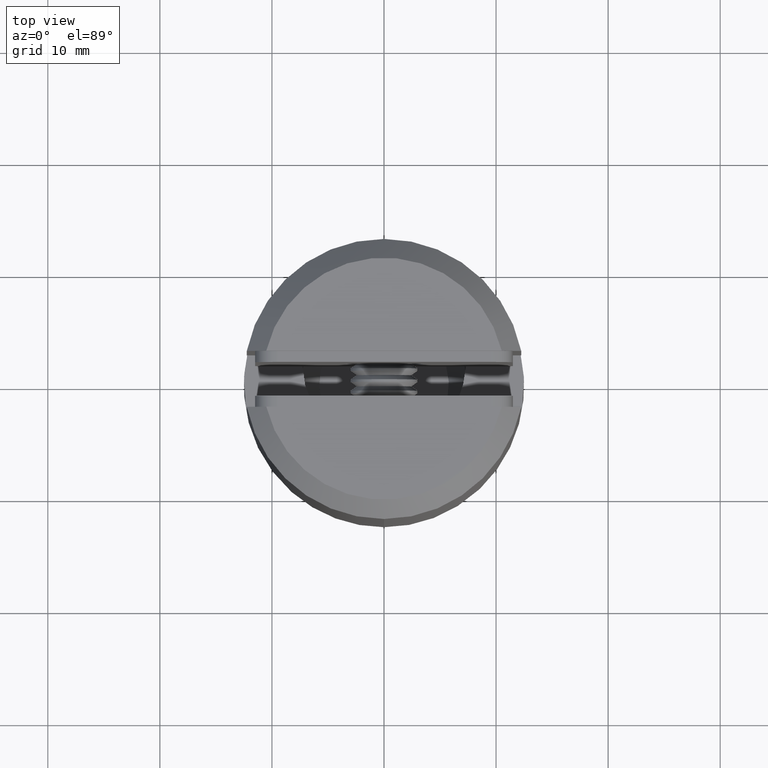
[diagram: clean part render]
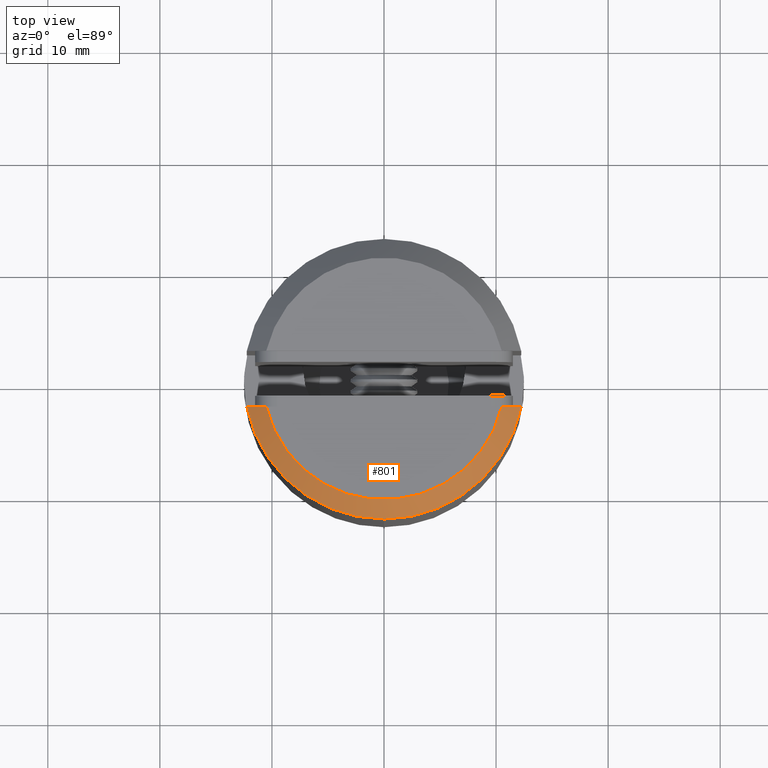
[diagram: same view with one face highlighted and labeled with its STEP entity id]
A machine part, top view. The second image highlights one B-rep face of the part: STEP entity #801.
In plain terms, the highlighted conical surface has half-angle 45 deg.
Its self-contained STEP definition (entity closure, byte-faithful):
#391 = CIRCLE ( 'NONE', #19444, 12.50000000000000000 ) ;
#622 = CARTESIAN_POINT ( 'NONE',  ( -10.50666455160723167, -2.500000000000003997, 39.59999999999999432 ) ) ;
#701 = CARTESIAN_POINT ( 'NONE',  ( -11.66812187511647636, -2.500000000000003109, 38.46762205974326321 ) ) ;
#801 = ADVANCED_FACE ( 'NONE', ( #9623 ), #12732, .T. ) ;
#1211 = CARTESIAN_POINT ( 'NONE',  ( 12.24744871391589207, -2.500000000000003997, 37.89999999999999858 ) ) ;
#2620 = DIRECTION ( 'NONE',  ( 0.000000000000000000, 1.000000000000000000, 0.000000000000000000 ) ) ;
#3323 = EDGE_LOOP ( 'NONE', ( #8668, #4480, #20180, #21629 ) ) ;
#3503 = VERTEX_POINT ( 'NONE', #14494 ) ;
#4480 = ORIENTED_EDGE ( 'NONE', *, *, #18083, .F. ) ;
#4507 = CARTESIAN_POINT ( 'NONE',  ( 0.000000000000000000, -2.174490824415384115E-17, 39.59999999999999432 ) ) ;
#4828 = DIRECTION ( 'NONE',  ( 0.000000000000000000, 1.000000000000000000, 0.000000000000000000 ) ) ;
#5681 = B_SPLINE_CURVE_WITH_KNOTS ( 'NONE', 3,
 ( #16985, #11912, #22618, #1211 ),
 .UNSPECIFIED., .F., .F.,
 ( 4, 4 ),
 ( 0.000000000000000000, 0.002433172722957547499 ),
 .UNSPECIFIED. ) ;
#5727 = CARTESIAN_POINT ( 'NONE',  ( -12.24744871391589207, -2.500000000000003997, 37.89999999999999858 ) ) ;
#5823 = AXIS2_PLACEMENT_3D ( 'NONE', #22695, #17229, #8393 ) ;
#5883 = CARTESIAN_POINT ( 'NONE',  ( -11.08800938267508762, -2.500000000000003997, 39.03444489547771212 ) ) ;
#7999 = CARTESIAN_POINT ( 'NONE',  ( 0.000000000000000000, -2.024221133297247584E-17, 37.89999999999999858 ) ) ;
#8393 = DIRECTION ( 'NONE',  ( -1.000000000000000000, 0.000000000000000000, 0.000000000000000000 ) ) ;
#8668 = ORIENTED_EDGE ( 'NONE', *, *, #23066, .F. ) ;
#9382 = CIRCLE ( 'NONE', #5823, 10.80000000000000604 ) ;
#9420 = CARTESIAN_POINT ( 'NONE',  ( -12.24744871391589207, -2.500000000000003997, 37.89999999999999858 ) ) ;
#9623 = FACE_OUTER_BOUND ( 'NONE', #3323, .T. ) ;
#10499 = CARTESIAN_POINT ( 'NONE',  ( 12.24744871391589207, -2.500000000000003997, 37.89999999999999858 ) ) ;
#11912 = CARTESIAN_POINT ( 'NONE',  ( 11.08800938267508585, -2.500000000000003997, 39.03444489547771212 ) ) ;
#12732 = CONICAL_SURFACE ( 'NONE', #21706, 10.80000000000000604, 0.7853981633974467247 ) ;
#12785 = EDGE_CURVE ( 'NONE', #15305, #3503, #9382, .T. ) ;
#14494 = CARTESIAN_POINT ( 'NONE',  ( 10.50666455160723878, -2.500000000000003997, 39.59999999999999432 ) ) ;
#15305 = VERTEX_POINT ( 'NONE', #16405 ) ;
#16405 = CARTESIAN_POINT ( 'NONE',  ( -10.50666455160723167, -2.500000000000003997, 39.59999999999999432 ) ) ;
#16985 = CARTESIAN_POINT ( 'NONE',  ( 10.50666455160723878, -2.500000000000003997, 39.59999999999999432 ) ) ;
#17229 = DIRECTION ( 'NONE',  ( 0.000000000000000000, 0.000000000000000000, 1.000000000000000000 ) ) ;
#18083 = EDGE_CURVE ( 'NONE', #19684, #22954, #391, .T. ) ;
#18273 = EDGE_CURVE ( 'NONE', #3503, #19684, #5681, .T. ) ;
#18405 = DIRECTION ( 'NONE',  ( 0.000000000000000000, 8.839393595184493222E-19, -1.000000000000000000 ) ) ;
#19444 = AXIS2_PLACEMENT_3D ( 'NONE', #7999, #18405, #2620 ) ;
#19684 = VERTEX_POINT ( 'NONE', #10499 ) ;
#20180 = ORIENTED_EDGE ( 'NONE', *, *, #18273, .F. ) ;
#21629 = ORIENTED_EDGE ( 'NONE', *, *, #12785, .F. ) ;
#21706 = AXIS2_PLACEMENT_3D ( 'NONE', #4507, #22720, #4828 ) ;
#22170 = B_SPLINE_CURVE_WITH_KNOTS ( 'NONE', 3,
 ( #9420, #701, #5883, #622 ),
 .UNSPECIFIED., .F., .F.,
 ( 4, 4 ),
 ( 1.734723475976807094E-18, 0.002433172722957552270 ),
 .UNSPECIFIED. ) ;
#22618 = CARTESIAN_POINT ( 'NONE',  ( 11.66812187511647636, -2.500000000000003997, 38.46762205974326321 ) ) ;
#22695 = CARTESIAN_POINT ( 'NONE',  ( 0.000000000000000000, -2.174490824415384115E-17, 39.59999999999999432 ) ) ;
#22720 = DIRECTION ( 'NONE',  ( 0.000000000000000000, 8.839393595184493222E-19, -1.000000000000000000 ) ) ;
#22954 = VERTEX_POINT ( 'NONE', #5727 ) ;
#23066 = EDGE_CURVE ( 'NONE', #22954, #15305, #22170, .T. ) ;